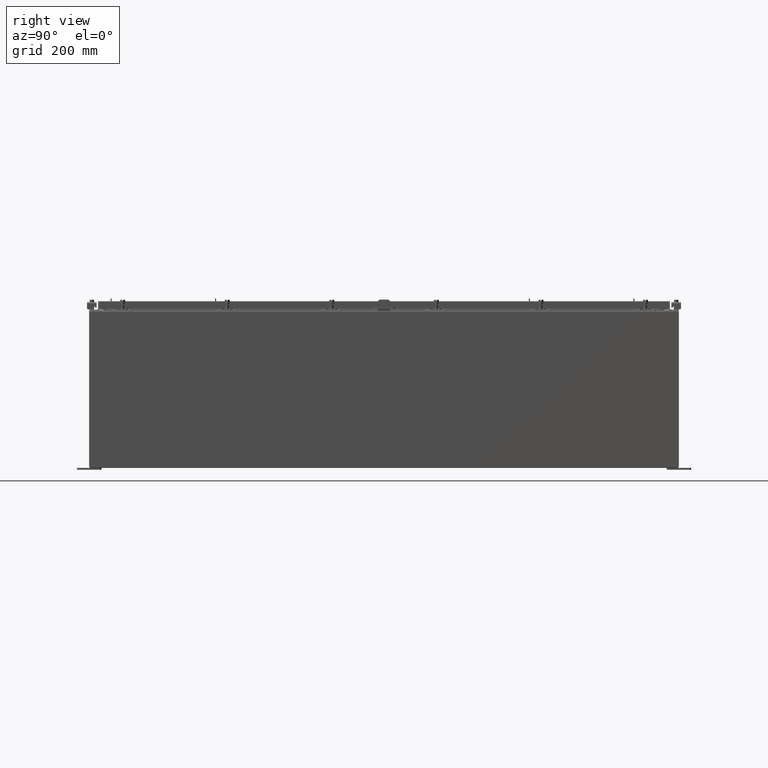
[diagram: clean part render]
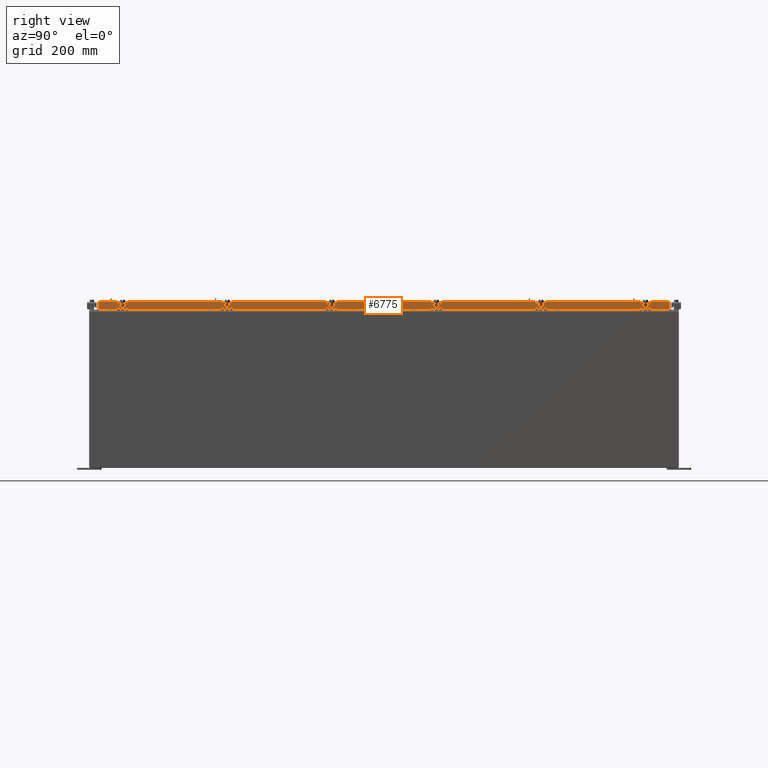
[diagram: same view with one face highlighted and labeled with its STEP entity id]
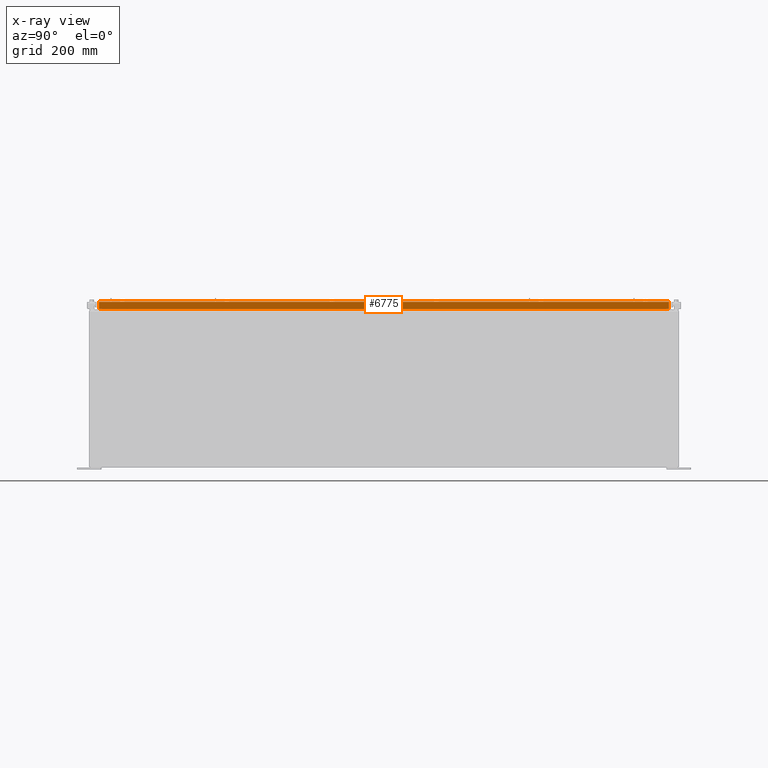
[diagram: x-ray of the same camera — body ghosted, the highlighted face saturated]
A machine part, right view. The second image highlights one B-rep face of the part: STEP entity #6775.
The next image is the same camera in x-ray: the body ghosted, the highlighted face saturated — about 0% of this face is hidden behind the body in this view.
In plain terms, the highlighted planar face has unit normal (1, 0, 0).
Its self-contained STEP definition (entity closure, byte-faithful):
#405 = DIRECTION ( 'NONE',  ( 0.0000000000000000000, -1.000000000000000000, 0.0000000000000000000 ) ) ;
#444 = CARTESIAN_POINT ( 'NONE',  ( 17.07800000000000300, -29.00515786437627200, -0.08770000000000007000 ) ) ;
#2051 = VECTOR ( 'NONE', #18252, 39.37007874015748100 ) ;
#2490 = DIRECTION ( 'NONE',  ( -2.818880942772360100E-015, -6.982962677686265900E-015, 1.000000000000000000 ) ) ;
#3598 = ORIENTED_EDGE ( 'NONE', *, *, #21572, .F. ) ;
#5071 = LINE ( 'NONE', #15195, #9350 ) ;
#5467 = AXIS2_PLACEMENT_3D ( 'NONE', #6792, #6246, #6177 ) ;
#5515 = CARTESIAN_POINT ( 'NONE',  ( 17.07800000000000300, 29.00515786437626500, -0.08770000000000007000 ) ) ;
#6106 = EDGE_CURVE ( 'NONE', #15057, #13736, #10281, .T. ) ;
#6177 = DIRECTION ( 'NONE',  ( 2.818880942772360100E-015, 0.0000000000000000000, -1.000000000000000000 ) ) ;
#6246 = DIRECTION ( 'NONE',  ( 1.000000000000000000, 0.0000000000000000000, 2.818880942772360100E-015 ) ) ;
#6669 = PLANE ( 'NONE',  #5467 ) ;
#6717 = EDGE_CURVE ( 'NONE', #11894, #25690, #22335, .T. ) ;
#6775 = ADVANCED_FACE ( 'NONE', ( #23984 ), #6669, .T. ) ;
#6792 = CARTESIAN_POINT ( 'NONE',  ( 17.07800000000000300, 0.0000000000000000000, 4.840166239667796000E-014 ) ) ;
#7433 = CARTESIAN_POINT ( 'NONE',  ( 17.07800000000000300, -29.00515786437627200, -0.07469999999999978000 ) ) ;
#8920 = VECTOR ( 'NONE', #9422, 39.37007874015748100 ) ;
#9342 = CARTESIAN_POINT ( 'NONE',  ( 17.07799999999998500, 28.25515786437626500, -0.8500000000000016400 ) ) ;
#9350 = VECTOR ( 'NONE', #2490, 39.37007874015748100 ) ;
#9422 = DIRECTION ( 'NONE',  ( 0.0000000000000000000, -1.000000000000000000, 0.0000000000000000000 ) ) ;
#10281 = LINE ( 'NONE', #27318, #26048 ) ;
#11507 = ORIENTED_EDGE ( 'NONE', *, *, #14410, .T. ) ;
#11894 = VERTEX_POINT ( 'NONE', #20301 ) ;
#12154 = ORIENTED_EDGE ( 'NONE', *, *, #26679, .F. ) ;
#12957 = ORIENTED_EDGE ( 'NONE', *, *, #6106, .T. ) ;
#13736 = VERTEX_POINT ( 'NONE', #444 ) ;
#14164 = VECTOR ( 'NONE', #19338, 39.37007874015748100 ) ;
#14410 = EDGE_CURVE ( 'NONE', #18032, #15057, #5071, .T. ) ;
#15057 = VERTEX_POINT ( 'NONE', #5515 ) ;
#15113 = CARTESIAN_POINT ( 'NONE',  ( 17.07800000000000700, -29.09400000000000500, -0.8499999999999996400 ) ) ;
#15195 = CARTESIAN_POINT ( 'NONE',  ( 17.07800000000000300, 29.00515786437626500, 2.509435972240157400E-013 ) ) ;
#16115 = CARTESIAN_POINT ( 'NONE',  ( 17.07800000000000700, -29.09400000000000500, -0.8499999999999996400 ) ) ;
#17006 = ORIENTED_EDGE ( 'NONE', *, *, #6717, .F. ) ;
#18032 = VERTEX_POINT ( 'NONE', #21496 ) ;
#18070 = DIRECTION ( 'NONE',  ( -2.818880942772360100E-015, -6.982962677686265900E-015, 1.000000000000000000 ) ) ;
#18252 = DIRECTION ( 'NONE',  ( 0.0000000000000000000, -1.000000000000000000, 0.0000000000000000000 ) ) ;
#18338 = ORIENTED_EDGE ( 'NONE', *, *, #19600, .F. ) ;
#18995 = LINE ( 'NONE', #16115, #2051 ) ;
#19168 = LINE ( 'NONE', #15113, #14164 ) ;
#19338 = DIRECTION ( 'NONE',  ( 0.0000000000000000000, -1.000000000000000000, 0.0000000000000000000 ) ) ;
#19600 = EDGE_CURVE ( 'NONE', #27140, #13736, #22809, .T. ) ;
#19931 = EDGE_LOOP ( 'NONE', ( #18338, #3598, #17006, #12154, #11507, #12957 ) ) ;
#20301 = CARTESIAN_POINT ( 'NONE',  ( 17.07799999999998500, 28.25515786437626500, -0.8500000000000016400 ) ) ;
#21496 = CARTESIAN_POINT ( 'NONE',  ( 17.07800000000000700, 29.00515786437627200, -0.8499999999999996400 ) ) ;
#21572 = EDGE_CURVE ( 'NONE', #25690, #27140, #18995, .T. ) ;
#22115 = VECTOR ( 'NONE', #18070, 39.37007874015748100 ) ;
#22335 = LINE ( 'NONE', #9342, #8920 ) ;
#22590 = CARTESIAN_POINT ( 'NONE',  ( 17.07799999999998500, -28.25515786437626500, -0.8500000000000016400 ) ) ;
#22809 = LINE ( 'NONE', #7433, #22115 ) ;
#23984 = FACE_OUTER_BOUND ( 'NONE', #19931, .T. ) ;
#25690 = VERTEX_POINT ( 'NONE', #22590 ) ;
#26048 = VECTOR ( 'NONE', #405, 39.37007874015748100 ) ;
#26679 = EDGE_CURVE ( 'NONE', #18032, #11894, #19168, .T. ) ;
#27125 = CARTESIAN_POINT ( 'NONE',  ( 17.07800000000000700, -29.00515786437626500, -0.8499999999999996400 ) ) ;
#27140 = VERTEX_POINT ( 'NONE', #27125 ) ;
#27318 = CARTESIAN_POINT ( 'NONE',  ( 17.07800000000000300, 0.0000000000000000000, -0.08770000000000007000 ) ) ;